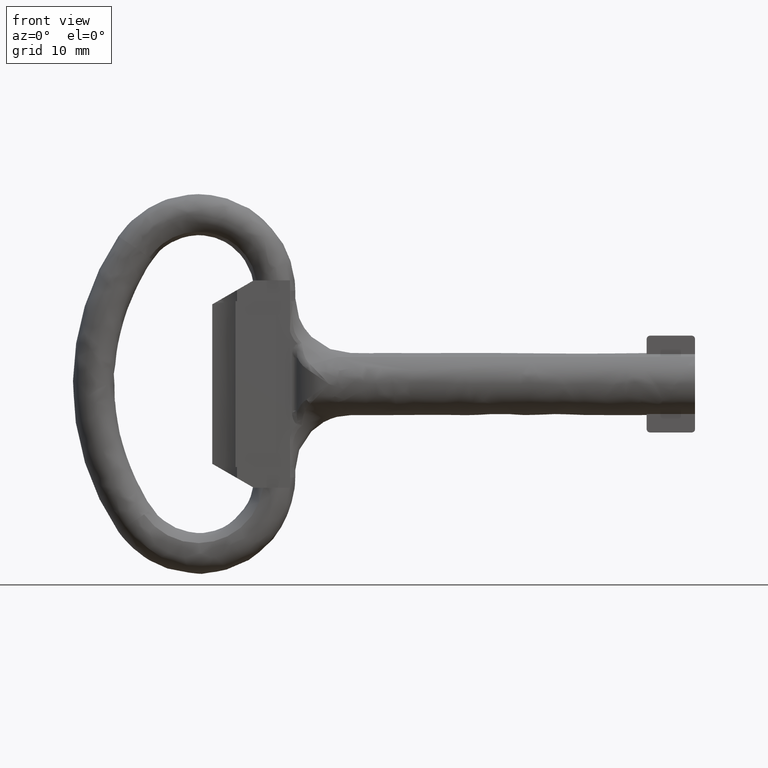
[diagram: clean part render]
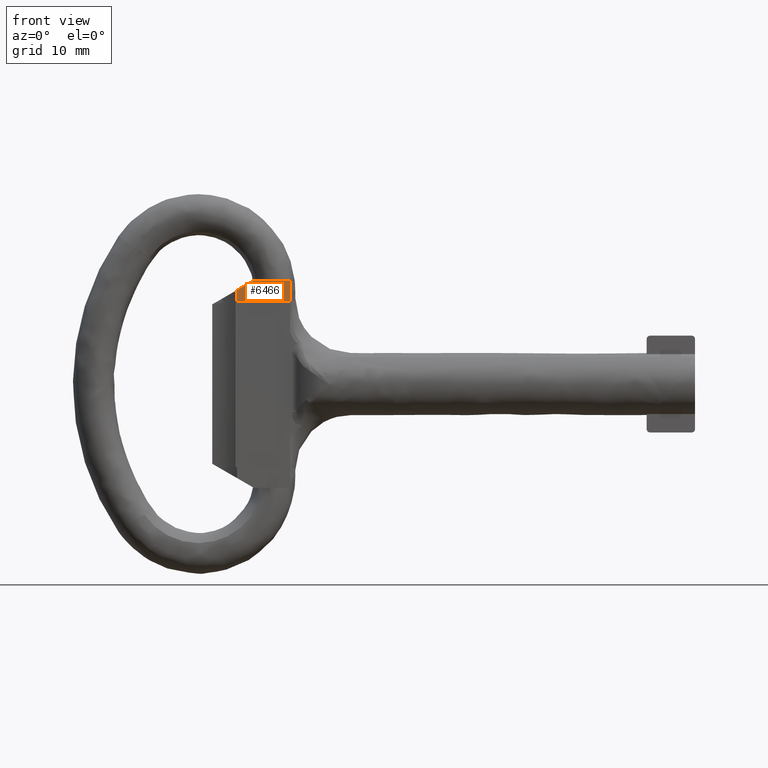
[diagram: same view with one face highlighted and labeled with its STEP entity id]
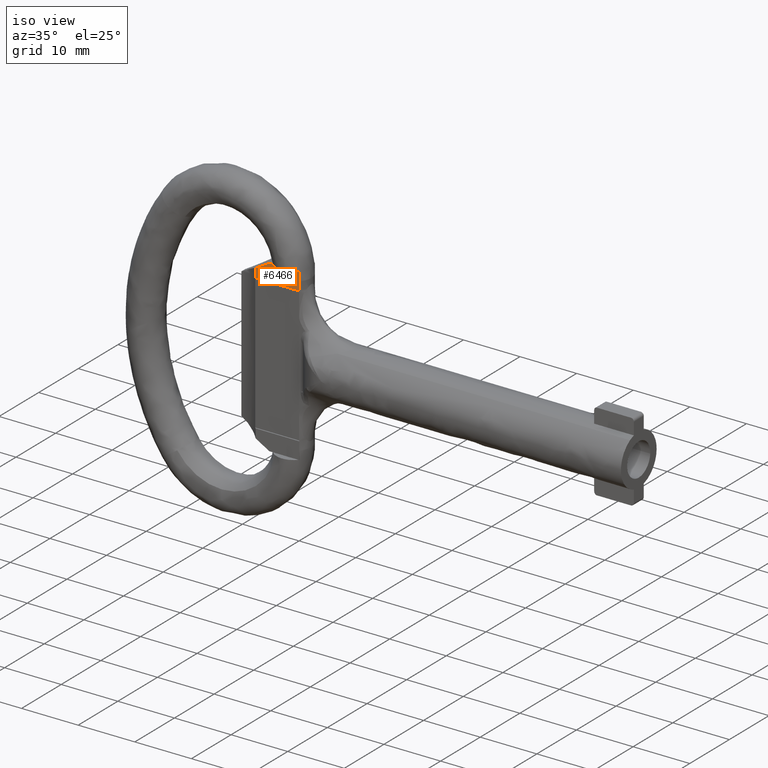
[diagram: same view with one face highlighted and labeled with its STEP entity id]
A machine part, front view. The second image highlights one B-rep face of the part: STEP entity #6466.
A second angle (iso view) of the same face is appended — the face is thin or edge-on in the first view.
In plain terms, the highlighted face is a freeform B-spline surface patch.
Its self-contained STEP definition (entity closure, byte-faithful):
#1477=CARTESIAN_POINT('',(-63.208550391848703,-2.000000601397505,15.000000712461700));
#1478=VERTEX_POINT('',#1477);
#1490=CARTESIAN_POINT('',(-58.692362651926800,-2.000000601397505,15.000000712461700));
#1491=VERTEX_POINT('',#1490);
#5819=CARTESIAN_POINT('',(-66.273137350546307,-2.000000601397505,12.000000569969400));
#5820=VERTEX_POINT('',#5819);
#5843=CARTESIAN_POINT('',(-58.600002783350703,-2.000000601397490,12.000000569969400));
#5844=VERTEX_POINT('',#5843);
#5850=CARTESIAN_POINT('',(-58.600002783350703,-2.000000601397490,12.000000569969400));
#5851=CARTESIAN_POINT('',(-66.273137350546307,-2.000000601397505,12.000000569969400));
#5852=QUASI_UNIFORM_CURVE('',1,(#5850,#5851),.UNSPECIFIED.,.F.,.U.);
#5853=EDGE_CURVE('',#5844,#5820,#5852,.T.);
#5897=CARTESIAN_POINT('',(-66.273137322556011,-2.000000601397505,13.597039871720421));
#5898=VERTEX_POINT('',#5897);
#5899=CARTESIAN_POINT('',(-66.273137322556011,-2.000000601397505,13.597039871720421));
#5900=CARTESIAN_POINT('',(-66.273137331886062,-2.000000601397505,13.064693438082211));
#5901=CARTESIAN_POINT('',(-66.273137341216142,-2.000000601397505,12.532347004253451));
#5902=CARTESIAN_POINT('',(-66.273137350546307,-2.000000601397505,12.000000569969400));
#5903=B_SPLINE_CURVE_WITH_KNOTS('',3,(#5899,#5900,#5901,#5902),.UNSPECIFIED.,.F.,.U.,(4,4),(0.0,0.001597039301487),.UNSPECIFIED.);
#5904=EDGE_CURVE('',#5898,#5820,#5903,.T.);
#6102=CARTESIAN_POINT('',(-58.600002783350703,-2.000000601397490,15.000000712461700));
#6103=VERTEX_POINT('',#6102);
#6110=CARTESIAN_POINT('',(-58.692362651926800,-2.000000601397505,15.000000712461700));
#6111=CARTESIAN_POINT('',(-58.600002783350703,-2.000000601397490,15.000000712461700));
#6112=QUASI_UNIFORM_CURVE('',1,(#6110,#6111),.UNSPECIFIED.,.F.,.U.);
#6113=EDGE_CURVE('',#1491,#6103,#6112,.T.);
#6186=CARTESIAN_POINT('',(-63.843137865362607,-2.000000601397490,15.000000712461700));
#6187=VERTEX_POINT('',#6186);
#6188=CARTESIAN_POINT('',(-63.843137865362607,-2.000000601397490,15.000000712461700));
#6189=CARTESIAN_POINT('',(-63.208550391848703,-2.000000601397505,15.000000712461700));
#6190=QUASI_UNIFORM_CURVE('',1,(#6188,#6189),.UNSPECIFIED.,.F.,.U.);
#6191=EDGE_CURVE('',#6187,#1478,#6190,.T.);
#6296=CARTESIAN_POINT('',(-58.692362651926800,-2.000000601397505,15.000000712461700));
#6297=CARTESIAN_POINT('',(-63.208550391848703,-2.000000601397505,15.000000712461700));
#6298=QUASI_UNIFORM_CURVE('',1,(#6296,#6297),.UNSPECIFIED.,.F.,.U.);
#6299=EDGE_CURVE('',#1491,#1478,#6298,.T.);
#6381=CARTESIAN_POINT('',(-66.273137322556011,-2.000000601397505,13.597039871720421));
#6382=CARTESIAN_POINT('',(-63.843137865362607,-2.000000601397490,15.000000712461700));
#6383=QUASI_UNIFORM_CURVE('',1,(#6381,#6382),.UNSPECIFIED.,.F.,.U.);
#6384=EDGE_CURVE('',#5898,#6187,#6383,.T.);
#6441=CARTESIAN_POINT('',(-58.600002783350703,-2.000000601397490,15.000000712461700));
#6442=CARTESIAN_POINT('',(-58.600002783350703,-2.000000601397490,12.000000569969400));
#6443=QUASI_UNIFORM_CURVE('',1,(#6441,#6442),.UNSPECIFIED.,.F.,.U.);
#6444=EDGE_CURVE('',#6103,#5844,#6443,.T.);
#6452=CARTESIAN_POINT('',(-66.656413171855633,-2.000000601397505,15.149850945785090));
#6453=CARTESIAN_POINT('',(-66.656413171855633,-2.000000601397505,11.850150926732020));
#6454=CARTESIAN_POINT('',(-58.216728814326942,-2.000000601397505,15.149850945785090));
#6455=CARTESIAN_POINT('',(-58.216728814326942,-2.000000601397505,11.850150926732020));
#6456=B_SPLINE_SURFACE_WITH_KNOTS('',1,1,((#6452,#6454),(#6453,#6455)),.UNSPECIFIED.,.F.,.F.,.U.,(2,2),(2,2),(0.0,3.299700019053063),(0.0,8.439684357528691),.UNSPECIFIED.);
#6457=ORIENTED_EDGE('',*,*,#5853,.F.);
#6458=ORIENTED_EDGE('',*,*,#6444,.F.);
#6459=ORIENTED_EDGE('',*,*,#6113,.F.);
#6460=ORIENTED_EDGE('',*,*,#6299,.T.);
#6461=ORIENTED_EDGE('',*,*,#6191,.F.);
#6462=ORIENTED_EDGE('',*,*,#6384,.F.);
#6463=ORIENTED_EDGE('',*,*,#5904,.T.);
#6464=EDGE_LOOP('',(#6457,#6458,#6459,#6460,#6461,#6462,#6463));
#6465=FACE_OUTER_BOUND('',#6464,.T.);
#6466=ADVANCED_FACE('',(#6465),#6456,.T.);